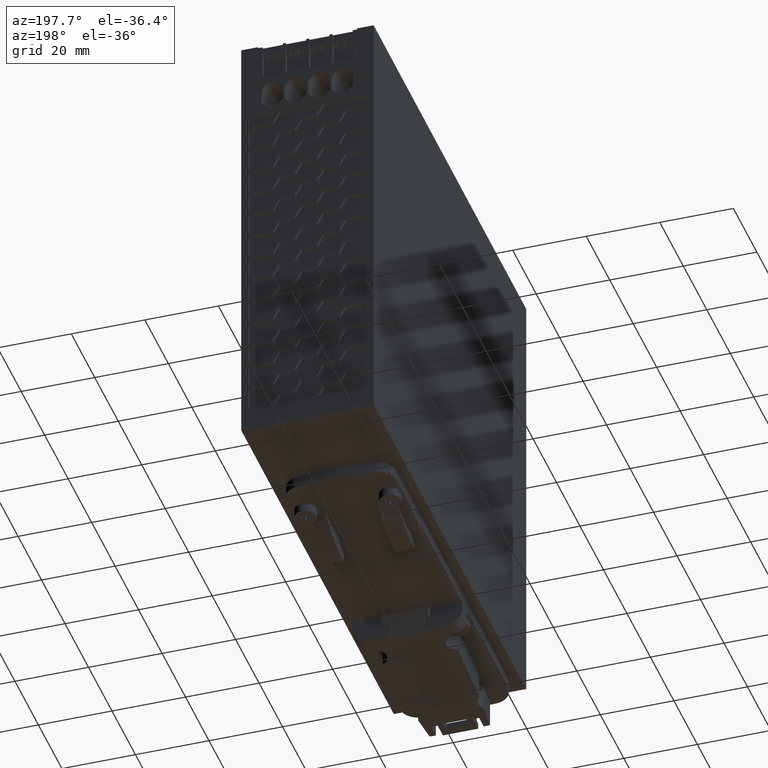
[diagram: clean part render]
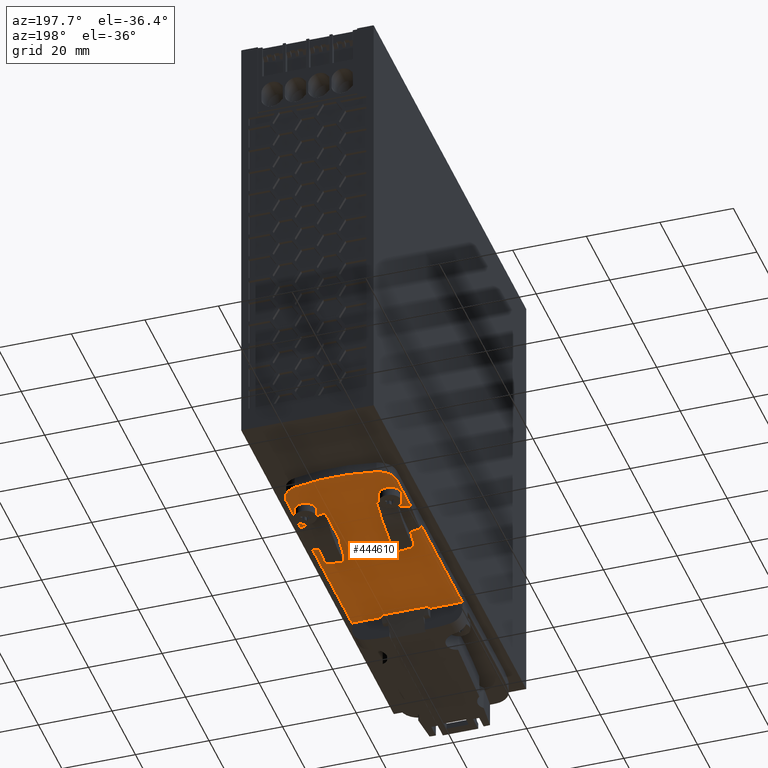
[diagram: same view with one face highlighted and labeled with its STEP entity id]
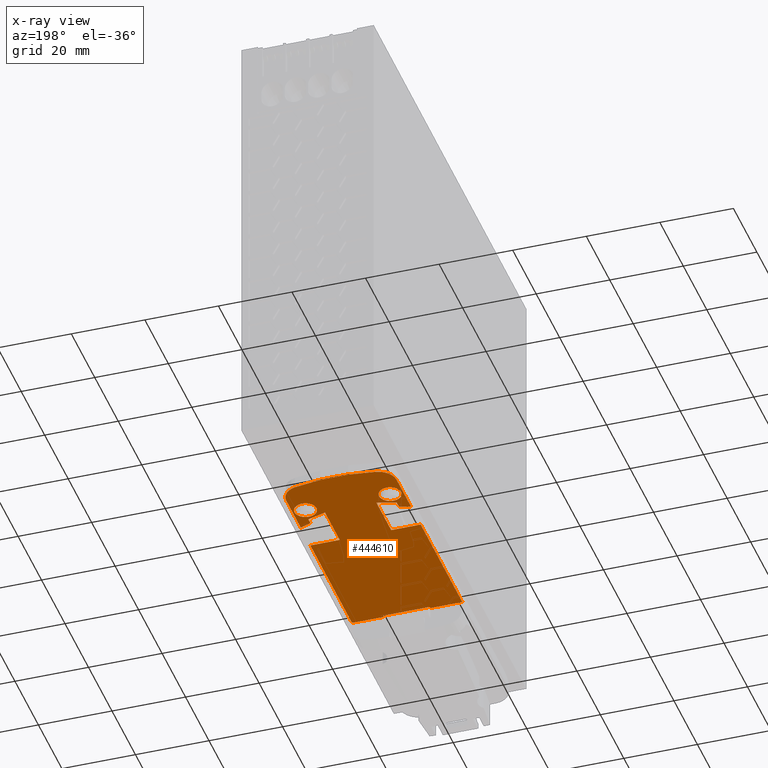
[diagram: x-ray of the same camera — body ghosted, the highlighted face saturated]
A machine part, auxiliary view. The second image highlights one B-rep face of the part: STEP entity #444610.
The next image is the same camera in x-ray: the body ghosted, the highlighted face saturated — about 0% of this face is hidden behind the body in this view.
In plain terms, the highlighted planar face has unit normal (0, 0, -1).
Its self-contained STEP definition (entity closure, byte-faithful):
#406170=CARTESIAN_POINT('',(33.0006696575565,88.711504177131,
6.59999999999972));
#406180=VERTEX_POINT('',#406170);
#406270=CARTESIAN_POINT('',(33.0007818670326,80.5489273646893,
6.59999999999972));
#406280=VERTEX_POINT('',#406270);
#406310=CARTESIAN_POINT('',(33.0001130694827,129.2,6.59999999999972));
#406320=DIRECTION('',(1.37468202358229E-5,-0.999999999905513,
3.26265223505973E-55));
#406330=VECTOR('',#406320,1.);
#406340=LINE('',#406310,#406330);
#406350=CARTESIAN_POINT('',(33.0012698791509,45.0489273680436,
6.59999999999972));
#406360=VERTEX_POINT('',#406350);
#406370=EDGE_CURVE('',#406280,#406360,#406340,.T.);
#406820=CARTESIAN_POINT('',(33.000499715995,101.073749299711,
6.59999999999972));
#406830=VERTEX_POINT('',#406820);
#406860=CARTESIAN_POINT('',(33.0001130694827,129.2,6.59999999999972));
#406870=DIRECTION('',(1.37468202358229E-5,-0.999999999905513,
3.26265223505973E-55));
#406880=VECTOR('',#406870,1.);
#406890=LINE('',#406860,#406880);
#406900=EDGE_CURVE('',#406830,#406180,#406890,.T.);
#407120=CARTESIAN_POINT('',(29.1115438119969,105.948676054611,
6.59999999999972));
#407130=VERTEX_POINT('',#407120);
#407160=CARTESIAN_POINT('',(28.0004997164675,101.073680565609,
6.59999999999972));
#407170=DIRECTION('',(9.95682444457783E-60,-3.26265223399926E-55,-1.));
#407180=DIRECTION('',(-1.,1.38913403349705E-19,-9.95682444457783E-60));
#407190=AXIS2_PLACEMENT_3D('',#407160,#407170,#407180);
#407200=CIRCLE('',#407190,4.99999999999995);
#407210=EDGE_CURVE('',#407130,#406830,#407200,.T.);
#407450=CARTESIAN_POINT('',(6.88932159187441,105.948370569717,
6.59999999999972));
#407460=VERTEX_POINT('',#407450);
#407490=CARTESIAN_POINT('',(18.0011028567024,57.1987211645928,
6.59999999999972));
#407500=DIRECTION('',(9.95682444457783E-60,-3.26265223399926E-55,-1.));
#407510=DIRECTION('',(-1.,1.38913403349705E-19,-9.95682444457783E-60));
#407520=AXIS2_PLACEMENT_3D('',#407490,#407500,#407510);
#407530=CIRCLE('',#407520,49.9999999999993);
#407540=EDGE_CURVE('',#407460,#407130,#407530,.T.);
#408220=CARTESIAN_POINT('',(0.00178708709996158,45.0484737300857,
6.59999999999972));
#408230=DIRECTION('',(0.999999999905513,1.37468202375279E-5,
5.47171506780131E-60));
#408240=VECTOR('',#408230,1.);
#408250=LINE('',#408220,#408240);
#408260=CARTESIAN_POINT('',(24.301269879973,45.0488077707076,
6.59999999999972));
#408270=VERTEX_POINT('',#408260);
#408280=EDGE_CURVE('',#408270,#406360,#408250,.T.);
#409920=CARTESIAN_POINT('',(24.3001130686608,129.2,6.59999999999972));
#409930=DIRECTION('',(1.37468202343577E-5,-0.999999999905512,
3.26265223505973E-55));
#409940=VECTOR('',#409930,1.);
#409950=LINE('',#409920,#409940);
#409960=CARTESIAN_POINT('',(24.3012630065629,45.5488077706603,
6.59999999999972));
#409970=VERTEX_POINT('',#409960);
#409980=EDGE_CURVE('',#409970,#408270,#409950,.T.);
#410400=CARTESIAN_POINT('',(0.00178708709996158,45.548473730133,
6.59999999999972));
#410410=DIRECTION('',(0.999999999905512,1.37468202365522E-5,
5.47171506811966E-60));
#410420=VECTOR('',#410410,1.);
#410430=LINE('',#410400,#410420);
#410440=CARTESIAN_POINT('',(11.7012630077534,45.5486345607253,
6.59999999999972));
#410450=VERTEX_POINT('',#410440);
#410460=EDGE_CURVE('',#410450,#409970,#410430,.T.);
#411010=CARTESIAN_POINT('',(11.7001130674701,129.2,6.59999999999972));
#411020=DIRECTION('',(-1.37468202363879E-5,0.999999999905512,
-3.26265223505973E-55));
#411030=VECTOR('',#411020,1.);
#411040=LINE('',#411010,#411030);
#411050=CARTESIAN_POINT('',(11.7012698811635,45.0486345607726,
6.59999999999972));
#411060=VERTEX_POINT('',#411050);
#411070=EDGE_CURVE('',#411060,#410450,#411040,.T.);
#411450=CARTESIAN_POINT('',(0.00178708709996158,45.0484737300857,
6.59999999999972));
#411460=DIRECTION('',(0.999999999905513,1.37468202375279E-5,
5.47171506780131E-60));
#411470=VECTOR('',#411460,1.);
#411480=LINE('',#411450,#411470);
#411490=CARTESIAN_POINT('',(3.00126988198557,45.0485149634365,
6.59999999999972));
#411500=VERTEX_POINT('',#411490);
#411510=EDGE_CURVE('',#411500,#411060,#411480,.T.);
#412400=CARTESIAN_POINT('',(3.00011306664807,129.2,6.59999999999972));
#412410=DIRECTION('',(1.37468202359206E-5,-0.999999999905512,
3.26265223505973E-55));
#412420=VECTOR('',#412410,1.);
#412430=LINE('',#412400,#412420);
#412440=CARTESIAN_POINT('',(3.00078186986719,80.5485149600822,
6.59999999999972));
#412450=VERTEX_POINT('',#412440);
#412460=EDGE_CURVE('',#412450,#411500,#412430,.T.);
#412830=CARTESIAN_POINT('',(3.00066966039108,88.7110917725239,
6.59999999999974));
#412840=VERTEX_POINT('',#412830);
#412870=CARTESIAN_POINT('',(3.00011306664807,129.2,6.59999999999972));
#412880=DIRECTION('',(1.37468202359206E-5,-0.999999999905512,
3.26265223505973E-55));
#412890=VECTOR('',#412880,1.);
#412900=LINE('',#412870,#412890);
#412910=CARTESIAN_POINT('',(3.00049971882965,101.073336895104,
6.59999999999972));
#412920=VERTEX_POINT('',#412910);
#412930=EDGE_CURVE('',#412920,#412840,#412900,.T.);
#413160=CARTESIAN_POINT('',(8.00049971835728,101.073405629205,
6.59999999999972));
#413170=DIRECTION('',(9.95682444457783E-60,-3.26265223399926E-55,-1.));
#413180=DIRECTION('',(-1.,1.38913403349705E-19,-9.95682444457783E-60));
#413190=AXIS2_PLACEMENT_3D('',#413160,#413170,#413180);
#413200=CIRCLE('',#413190,5.00000000000008);
#413210=EDGE_CURVE('',#412920,#407460,#413200,.T.);
#413410=CARTESIAN_POINT('',(0.00178708709996158,80.5484737334401,
6.59999999999972));
#413420=DIRECTION('',(-0.999999999905513,-1.37468202355511E-5,
-5.47171506844629E-60));
#413430=VECTOR('',#413420,1.);
#413440=LINE('',#413410,#413430);
#413450=CARTESIAN_POINT('',(11.0007818691113,80.5486249346441,
6.59999999999972));
#413460=VERTEX_POINT('',#413450);
#413470=EDGE_CURVE('',#413460,#412450,#413440,.T.);
#414300=CARTESIAN_POINT('',(11.000113067404,129.2,6.59999999999972));
#414310=DIRECTION('',(-1.3746820235798E-5,0.999999999905513,
-3.26265223505973E-55));
#414320=VECTOR('',#414310,1.);
#414330=LINE('',#414300,#414320);
#414340=CARTESIAN_POINT('',(11.00060950093,93.0873923219355,
6.59999999999972));
#414350=VERTEX_POINT('',#414340);
#414360=EDGE_CURVE('',#413460,#414350,#414330,.T.);
#414920=CARTESIAN_POINT('',(6.00011306693153,129.2,6.59999999999972));
#414930=DIRECTION('',(-1.37468202359883E-5,0.999999999905512,
-3.26265223505973E-55));
#414940=VECTOR('',#414930,1.);
#414950=LINE('',#414920,#414940);
#414960=CARTESIAN_POINT('',(6.00065459239778,89.8072199316904,
6.59999999999972));
#414970=VERTEX_POINT('',#414960);
#414980=CARTESIAN_POINT('',(6.00063035828749,91.5701083575295,
6.59999999999972));
#414990=VERTEX_POINT('',#414980);
#415000=EDGE_CURVE('',#414970,#414990,#414950,.T.);
#417530=CARTESIAN_POINT('',(6.00065459239785,89.8072199267511,
6.59999999999972));
#417540=CARTESIAN_POINT('',(5.98476421142438,89.8022766316507,
6.59999999999972));
#417550=CARTESIAN_POINT('',(5.95298958652914,89.7923702841277,
6.59999999999972));
#417560=CARTESIAN_POINT('',(5.88946914156527,89.7724650776187,
6.59999999999972));
#417570=CARTESIAN_POINT('',(5.8101224164082,89.7474118773588,
6.59999999999972));
#417580=CARTESIAN_POINT('',(5.7387753413328,89.7246590431978,
6.59999999999972));
#417590=CARTESIAN_POINT('',(5.69123806289457,89.709404959447,
6.59999999999972));
#417600=CARTESIAN_POINT('',(5.65955442620393,89.6992109631759,
6.59999999999972));
#417610=CARTESIAN_POINT('',(5.57245576005785,89.6710776141812,
6.59999999999972));
#417620=CARTESIAN_POINT('',(5.43010635000332,89.6244959087909,
6.59999999999972));
#417630=CARTESIAN_POINT('',(5.05127607754603,89.4979564213531,
6.59999999999972));
#417640=CARTESIAN_POINT('',(4.48590698230466,89.2994310857445,
6.59999999999972));
#417650=CARTESIAN_POINT('',(3.86339380902277,89.0633757548544,
6.59999999999972));
#417660=CARTESIAN_POINT('',(3.4308793824773,88.8899380064901,
6.59999999999972));
#417670=CARTESIAN_POINT('',(3.23088705584881,88.8075050167989,
6.59999999999972));
#417680=CARTESIAN_POINT('',(3.14641726128744,88.7722888845206,
6.59999999999972));
#417690=CARTESIAN_POINT('',(3.11955406311227,88.7610513605265,
6.59999999999972));
#417700=CARTESIAN_POINT('',(3.10420751573085,88.7546207225749,
6.59999999999972));
#417710=CARTESIAN_POINT('',(3.08119201267528,88.7449644878059,
6.59999999999974));
#417720=CARTESIAN_POINT('',(3.05434811198608,88.7336809751512,
6.59999999999972));
#417730=CARTESIAN_POINT('',(3.02750737338545,88.7223899577265,
6.59999999999972));
#417740=CARTESIAN_POINT('',(3.01408794729577,88.7167422076046,
6.59999999999972));
#417750=CARTESIAN_POINT('',(3.00641989085222,88.7135144791262,
6.59999999999972));
#417760=CARTESIAN_POINT('',(3.00258618325065,88.7118998529655,
6.59999999999972));
#417770=CARTESIAN_POINT('',(3.00066965469374,88.7110917684843,
6.59999999999972));
#417780=B_SPLINE_CURVE_WITH_KNOTS('',3,(#417530,#417540,#417550,#417560,
#417570,#417580,#417590,#417600,#417610,#417620,#417630,#417640,#417650,
#417660,#417670,#417680,#417690,#417700,#417710,#417720,#417730,#417740,
#417750,#417760,#417770),.UNSPECIFIED.,.F.,.F.,(4,1,1,1,1,1,1,1,1,1,1,1,
1,1,1,1,1,1,1,1,1,1,4),(0.,0.015624733671173,0.031249469653176,
0.062499044700485,0.09374860621571,0.101561002358867,0.109373399372656,
0.124998194456258,0.187498141469384,0.249998122328627,0.499998939434173,
0.750035154333188,0.875018056520831,0.937509067185836,0.953131804020811,
0.960943172601073,0.964848856958487,0.968754541260401,0.984377271003576,
0.992188635879079,0.9960943180232,0.998047159057379,1.),.UNSPECIFIED.);
#417790=EDGE_CURVE('',#414970,#412840,#417780,.T.);
#418680=CARTESIAN_POINT('',(11.0006095006035,93.0873923209287,
6.59999999999972));
#418690=CARTESIAN_POINT('',(11.000196751031,93.0872900597221,
6.59999999999972));
#418700=CARTESIAN_POINT('',(10.999371709707,93.0870836924227,
6.59999999999972));
#418710=CARTESIAN_POINT('',(10.9977214920801,93.0866715037043,
6.59999999999972));
#418720=CARTESIAN_POINT('',(10.9948336822771,93.0859498746094,
6.59999999999972));
#418730=CARTESIAN_POINT('',(10.9890580069811,93.0845068277512,
6.59999999999972));
#418740=CARTESIAN_POINT('',(10.9775068193365,93.0816200505471,
6.59999999999972));
#418750=CARTESIAN_POINT('',(10.9544041242785,93.0758477175968,
6.59999999999972));
#418760=CARTESIAN_POINT('',(10.9280008914586,93.0692502390184,
6.59999999999972));
#418770=CARTESIAN_POINT('',(10.9015974678113,93.062652391701,
6.59999999999972));
#418780=CARTESIAN_POINT('',(10.8751932929652,93.0560553280313,
6.59999999999972));
#418790=CARTESIAN_POINT('',(10.842191596814,93.047791663045,
6.59999999999972));
#418800=CARTESIAN_POINT('',(10.8025975274606,93.03784092553,
6.59999999999972));
#418810=CARTESIAN_POINT('',(10.749815116448,93.0245304632089,
6.59999999999972));
#418820=CARTESIAN_POINT('',(10.6046973319026,92.9877453892261,
6.59999999999972));
#418830=CARTESIAN_POINT('',(10.4201817371273,92.9401681187926,
6.59999999999972));
#418840=CARTESIAN_POINT('',(10.2095657471826,92.8847604317284,
6.59999999999972));
#418850=CARTESIAN_POINT('',(9.99911272655243,92.8286593111742,
6.59999999999972));
#418860=CARTESIAN_POINT('',(9.63126237292319,92.7286679798648,
6.59999999999972));
#418870=CARTESIAN_POINT('',(9.10714465667324,92.5806735776707,
6.59999999999972));
#418880=CARTESIAN_POINT('',(8.2716973113458,92.3329770040235,
6.59999999999972));
#418890=CARTESIAN_POINT('',(7.44118225464545,92.0690368792015,
6.59999999999972));
#418900=CARTESIAN_POINT('',(6.71921317224135,91.8241206403732,
6.59999999999972));
#418910=CARTESIAN_POINT('',(6.38518125973321,91.7072077378555,
6.59999999999972));
#418920=CARTESIAN_POINT('',(6.24407775960413,91.6571872525261,
6.59999999999972));
#418930=CARTESIAN_POINT('',(6.19279342057924,91.6389372067753,
6.59999999999972));
#418940=CARTESIAN_POINT('',(6.15434148257273,91.6252202740369,
6.59999999999972));
#418950=CARTESIAN_POINT('',(6.11590216651293,91.6114703403763,
6.59999999999972));
#418960=CARTESIAN_POINT('',(6.08387912038794,91.5999876654989,
6.59999999999972));
#418970=CARTESIAN_POINT('',(6.05826406302292,91.5907930549171,
6.59999999999972));
#418980=CARTESIAN_POINT('',(6.03905261984919,91.583898704898,
6.59999999999972));
#418990=CARTESIAN_POINT('',(6.02304338695602,91.5781525815445,
6.59999999999972));
#419000=CARTESIAN_POINT('',(6.01183668939018,91.5741309623451,
6.59999999999972));
#419010=CARTESIAN_POINT('',(6.00623345456848,91.5721198450717,
6.59999999999972));
#419020=CARTESIAN_POINT('',(6.00343178541443,91.5711144020357,
6.59999999999972));
#419030=CARTESIAN_POINT('',(6.00183085987747,91.5705397281952,
6.59999999999972));
#419040=CARTESIAN_POINT('',(6.00103026975624,91.5702527045728,
6.59999999999972));
#419050=CARTESIAN_POINT('',(6.0006302817501,91.5701083331256,
6.59999999999972));
#419060=B_SPLINE_CURVE_WITH_KNOTS('',3,(#418680,#418690,#418700,#418710,
#418720,#418730,#418740,#418750,#418760,#418770,#418780,#418790,#418800,
#418810,#418820,#418830,#418840,#418850,#418860,#418870,#418880,#418890,
#418900,#418910,#418920,#418930,#418940,#418950,#418960,#418970,#418980,
#418990,#419000,#419010,#419020,#419030,#419040,#419050),.UNSPECIFIED.,
.F.,.F.,(4,1,1,1,1,1,1,1,1,1,1,1,1,1,1,1,1,1,1,1,1,1,1,1,1,1,1,1,1,1,1,1
,1,1,1,4),(0.,0.000244037983802,0.000488076222574,0.00097615299268,
0.001952307117527,0.003904616536751,0.007809237674098,0.015618484804456,
0.019523263546943,0.023428042262412,0.03123759862989,0.039047606437888,
0.046857614960146,0.062477637924135,0.124964387955741,0.15621335078156,
0.187462278406562,0.249960417070914,0.374981011362291,0.500003505122966,
0.750040847926857,0.875035739128354,0.93752237031702,0.95314238293342,
0.960952386786285,0.96876239065677,0.976571943561825,0.984381496520365,
0.988286120545852,0.992190744594104,0.996095366606573,0.998047676530583,
0.999023831036303,0.999511908054342,0.999755952598832,1.),.UNSPECIFIED.)
;
#419070=EDGE_CURVE('',#414350,#414990,#419060,.T.);
#443120=CARTESIAN_POINT('',(33.7512929131708,43.4947560284076,
6.59999999999972));
#443130=DIRECTION('',(9.95682444457778E-60,-3.26265223399926E-55,-1.));
#443140=DIRECTION('',(-1.,1.38913403349705E-19,-9.95682444457783E-60));
#443150=AXIS2_PLACEMENT_3D('',#443120,#443130,#443140);
#443160=PLANE('',#443150);
#443170=ORIENTED_EDGE('',*,*,#406370,.T.);
#443180=CARTESIAN_POINT('',(0.00178708709996158,80.5484737334401,
6.59999999999972));
#443190=DIRECTION('',(0.999999999905512,1.37468202355531E-5,
5.47171506844563E-60));
#443200=VECTOR('',#443190,1.);
#443210=LINE('',#443180,#443200);
#443220=CARTESIAN_POINT('',(25.0007818677885,80.5488173901274,
6.59999999999972));
#443230=VERTEX_POINT('',#443220);
#443240=EDGE_CURVE('',#443230,#406280,#443210,.T.);
#443250=ORIENTED_EDGE('',*,*,#443240,.T.);
#443260=CARTESIAN_POINT('',(25.0001130687268,129.2,6.59999999999972));
#443270=DIRECTION('',(-1.37468202356956E-5,0.999999999905512,
-3.26265223505973E-55));
#443280=VECTOR('',#443270,1.);
#443290=LINE('',#443260,#443280);
#443300=CARTESIAN_POINT('',(25.0006094996072,93.0875847774152,
6.59999999999759));
#443310=VERTEX_POINT('',#443300);
#443320=EDGE_CURVE('',#443230,#443310,#443290,.T.);
#443330=ORIENTED_EDGE('',*,*,#443320,.F.);
#443340=CARTESIAN_POINT('',(25.0006094996072,93.0875847774143,
6.59999999999972));
#443350=CARTESIAN_POINT('',(25.0010222519934,93.0874825275536,
6.59999999999972));
#443360=CARTESIAN_POINT('',(25.0018472989053,93.0872761825704,
6.59999999999972));
#443370=CARTESIAN_POINT('',(25.0034975278931,93.0868640392918,
6.59999999999972));
#443380=CARTESIAN_POINT('',(25.0063853574319,93.0861424890967,
6.59999999999972));
#443390=CARTESIAN_POINT('',(25.0121610724934,93.08469960124,
6.59999999999974));
#443400=CARTESIAN_POINT('',(25.0237123395021,93.0818131412894,
6.59999999999972));
#443410=CARTESIAN_POINT('',(25.0468151934023,93.0760414434465,
6.59999999999974));
#443420=CARTESIAN_POINT('',(25.07321860804,93.0694446920108,
6.59999999999972));
#443430=CARTESIAN_POINT('',(25.0996222123559,93.0628475674284,
6.59999999999972));
#443440=CARTESIAN_POINT('',(25.1260265599203,93.0562511951009,
6.59999999999972));
#443450=CARTESIAN_POINT('',(25.1590284895179,93.0479884616831,
6.59999999999972));
#443460=CARTESIAN_POINT('',(25.1986228584205,93.0380389158941,
6.59999999999972));
#443470=CARTESIAN_POINT('',(25.2514055995795,93.024729762713,
6.59999999999972));
#443480=CARTESIAN_POINT('',(25.3965244277217,92.9879488075769,
6.59999999999972));
#443490=CARTESIAN_POINT('',(25.5810413072573,92.9403765179874,
6.59999999999972));
#443500=CARTESIAN_POINT('',(25.7916588247903,92.8849746386807,
6.59999999999972));
#443510=CARTESIAN_POINT('',(26.0021133866972,92.8288793000628,
6.59999999999972));
#443520=CARTESIAN_POINT('',(26.369966489902,92.7288980848095,
6.59999999999972));
#443530=CARTESIAN_POINT('',(26.8940882748331,92.5809180923427,
6.59999999999972));
#443540=CARTESIAN_POINT('',(27.7295424295657,92.3332444871227,
6.59999999999972));
#443550=CARTESIAN_POINT('',(28.5600647428124,92.0693271967608,
6.59999999999972));
#443560=CARTESIAN_POINT('',(29.2820405585789,91.8244308075066,
6.59999999999974));
#443570=CARTESIAN_POINT('',(29.6160756853386,91.7075270887904,
6.59999999999972));
#443580=CARTESIAN_POINT('',(29.7571805606664,91.6575104829261,
6.59999999999972));
#443590=CARTESIAN_POINT('',(29.8084654014353,91.6392618471759,
6.59999999999972));
#443600=CARTESIAN_POINT('',(29.8469177165573,91.6255459716244,
6.59999999999972));
#443610=CARTESIAN_POINT('',(29.8853574106404,91.6117970948052,
6.59999999999972));
#443620=CARTESIAN_POINT('',(29.9173807724559,91.6003153003623,
6.59999999999972));
#443630=CARTESIAN_POINT('',(29.9429960826061,91.591121394035,
6.59999999999972));
#443640=CARTESIAN_POINT('',(29.9622077153244,91.5842275722104,
6.59999999999972));
#443650=CARTESIAN_POINT('',(29.9782171061944,91.5784818890114,
6.59999999999972));
#443660=CARTESIAN_POINT('',(29.9894239143255,91.5744605779258,
6.59999999999972));
#443670=CARTESIAN_POINT('',(29.9950272044384,91.5724496147065,
6.59999999999972));
#443680=CARTESIAN_POINT('',(29.9978289012348,91.5714442486989,
6.59999999999972));
#443690=CARTESIAN_POINT('',(29.9994298425712,91.5708696188739,
6.59999999999972));
#443700=CARTESIAN_POINT('',(30.0002304405834,91.5705826172625,
6.59999999999972));
#443710=CARTESIAN_POINT('',(30.0006304325588,91.570438256813,
6.59999999999972));
#443720=B_SPLINE_CURVE_WITH_KNOTS('',3,(#443340,#443350,#443360,#443370,
#443380,#443390,#443400,#443410,#443420,#443430,#443440,#443450,#443460,
#443470,#443480,#443490,#443500,#443510,#443520,#443530,#443540,#443550,
#443560,#443570,#443580,#443590,#443600,#443610,#443620,#443630,#443640,
#443650,#443660,#443670,#443680,#443690,#443700,#443710),.UNSPECIFIED.,
.F.,.F.,(4,1,1,1,1,1,1,1,1,1,1,1,1,1,1,1,1,1,1,1,1,1,1,1,1,1,1,1,1,1,1,1
,1,1,1,4),(0.,0.000244037985387,0.000488076225778,0.000976152999124,
0.001952307130476,0.003904616562713,0.007809237726096,0.015618484908559,
0.019523263645805,0.023428042356148,0.031237598729755,0.039047606663913,
0.046857615066748,0.062477638027739,0.124964388049168,0.156213350869903,
0.187462278490375,0.249960417145302,0.374981011408979,0.500003505166397,
0.750040847944962,0.875035739136489,0.937522370320862,0.953142382936274,
0.960952386788645,0.968762390658637,0.976571943563216,0.98438149652128,
0.988286120546543,0.992190744594559,0.996095366606797,0.998047676530696,
0.999023831036355,0.999511908054371,0.999755952598848,1.),.UNSPECIFIED.)
;
#443730=CARTESIAN_POINT('',(30.0006303560198,91.5704382812119,
6.59999999999768));
#443740=VERTEX_POINT('',#443730);
#443750=EDGE_CURVE('',#443310,#443740,#443720,.T.);
#443760=ORIENTED_EDGE('',*,*,#443750,.F.);
#443770=CARTESIAN_POINT('',(30.0001130691992,129.2,6.59999999999972));
#443780=DIRECTION('',(-1.37468202359331E-5,0.999999999905513,
-3.26265223505973E-55));
#443790=VECTOR('',#443780,1.);
#443800=LINE('',#443770,#443790);
#443810=CARTESIAN_POINT('',(30.0006545901301,89.8075498553755,
6.59999999999972));
#443820=VERTEX_POINT('',#443810);
#443830=EDGE_CURVE('',#443820,#443740,#443800,.T.);
#443840=ORIENTED_EDGE('',*,*,#443830,.T.);
#443850=CARTESIAN_POINT('',(30.0006545901301,89.8075498553755,
6.59999999999972));
#443860=CARTESIAN_POINT('',(30.016545107802,89.8026069970392,
6.59999999999972));
#443870=CARTESIAN_POINT('',(30.0483200054555,89.7927015190821,
6.59999999999972));
#443880=CARTESIAN_POINT('',(30.1118410008278,89.7727980584553,
6.59999999999972));
#443890=CARTESIAN_POINT('',(30.1911884186694,89.7477470388764,
6.59999999999972));
#443900=CARTESIAN_POINT('',(30.2625361222432,89.7249961638063,
6.59999999999972));
#443910=CARTESIAN_POINT('',(30.3100738221214,89.7097433856355,
6.59999999999972));
#443920=CARTESIAN_POINT('',(30.3417577405119,89.699550259728,
6.59999999999972));
#443930=CARTESIAN_POINT('',(30.4288571838585,89.6714193033112,
6.59999999999974));
#443940=CARTESIAN_POINT('',(30.5712078807246,89.6248415087899,
6.59999999999972));
#443950=CARTESIAN_POINT('',(30.9500416565816,89.4983124339032,
6.59999999999974));
#443960=CARTESIAN_POINT('',(31.5154160833374,89.2998025500072,
6.59999999999972));
#443970=CARTESIAN_POINT('',(32.1379358675141,89.063764775543,
6.59999999999972));
#443980=CARTESIAN_POINT('',(32.570454896679,88.890338590126,
6.59999999999972));
#443990=CARTESIAN_POINT('',(32.77044957678,88.8079110998804,
6.59999999999972));
#444000=CARTESIAN_POINT('',(32.854920381288,88.7726972769628,
6.59999999999972));
#444010=CARTESIAN_POINT('',(32.8817839004219,88.7614604865354,
6.59999999999972));
#444020=CARTESIAN_POINT('',(32.8971306312597,88.7550302670154,
6.59999999999972));
#444030=CARTESIAN_POINT('',(32.9201464075162,88.7453746542797,
6.59999999999972));
#444040=CARTESIAN_POINT('',(32.9469906343602,88.7340918835978,
6.59999999999972));
#444050=CARTESIAN_POINT('',(32.9738316946944,88.7228015970152,
6.59999999999972));
#444060=CARTESIAN_POINT('',(32.9872512818257,88.7171542125611,
6.59999999999972));
#444070=CARTESIAN_POINT('',(32.9949194289703,88.7139266898567,
6.59999999999972));
#444080=CARTESIAN_POINT('',(32.998753181176,88.7123121647552,
6.59999999999972));
#444090=CARTESIAN_POINT('',(33.0006697328075,88.7115041325775,
6.59999999999972));
#444100=B_SPLINE_CURVE_WITH_KNOTS('',3,(#443850,#443860,#443870,#443880,
#443890,#443900,#443910,#443920,#443930,#443940,#443950,#443960,#443970,
#443980,#443990,#444000,#444010,#444020,#444030,#444040,#444050,#444060,
#444070,#444080,#444090),.UNSPECIFIED.,.F.,.F.,(4,1,1,1,1,1,1,1,1,1,1,1,
1,1,1,1,1,1,1,1,1,1,4),(0.,0.015624734007336,0.031249470325589,
0.06249904604598,0.093748608238673,0.101561004551492,0.109373401735089,
0.124998197158643,0.187498145349089,0.249998127373343,0.499998954614795,
0.750035064020798,0.875018001263974,0.937509040707152,0.953131784068478,
0.960943155962061,0.964848841976381,0.968754527935468,0.984377264341221,
0.992188632547832,0.996094316357438,0.998047158224346,1.),.UNSPECIFIED.)
;
#444110=EDGE_CURVE('',#443820,#406180,#444100,.T.);
#444120=ORIENTED_EDGE('',*,*,#444110,.F.);
#444130=ORIENTED_EDGE('',*,*,#406900,.T.);
#444140=ORIENTED_EDGE('',*,*,#407210,.T.);
#444150=ORIENTED_EDGE('',*,*,#407540,.T.);
#444160=ORIENTED_EDGE('',*,*,#413210,.T.);
#444170=ORIENTED_EDGE('',*,*,#412930,.F.);
#444180=ORIENTED_EDGE('',*,*,#417790,.T.);
#444190=ORIENTED_EDGE('',*,*,#415000,.F.);
#444200=ORIENTED_EDGE('',*,*,#419070,.T.);
#444210=ORIENTED_EDGE('',*,*,#414360,.T.);
#444220=ORIENTED_EDGE('',*,*,#413470,.F.);
#444230=ORIENTED_EDGE('',*,*,#412460,.F.);
#444240=ORIENTED_EDGE('',*,*,#411510,.F.);
#444250=ORIENTED_EDGE('',*,*,#411070,.F.);
#444260=ORIENTED_EDGE('',*,*,#410460,.F.);
#444270=ORIENTED_EDGE('',*,*,#409980,.F.);
#444280=ORIENTED_EDGE('',*,*,#408280,.F.);
#444290=EDGE_LOOP('',(#444280,#444270,#444260,#444250,#444240,#444230,
#444220,#444210,#444200,#444190,#444180,#444170,#444160,#444150,#444140,
#444130,#444120,#443840,#443760,#443330,#443250,#443170));
#444300=FACE_OUTER_BOUND('',#444290,.T.);
#444310=CARTESIAN_POINT('',(29.5005749452048,95.6012444441962,
6.59999999999972));
#444320=DIRECTION('',(9.95682444457783E-60,-3.26265223399926E-55,-1.));
#444330=DIRECTION('',(-1.,1.38913403349705E-19,-9.95682444457783E-60));
#444340=AXIS2_PLACEMENT_3D('',#444310,#444320,#444330);
#444350=CIRCLE('',#444340,3.);
#444360=CARTESIAN_POINT('',(32.5005749452048,95.6012444441962,
6.59999999999972));
#444370=VERTEX_POINT('',#444360);
#444380=CARTESIAN_POINT('',(26.5005749452048,95.6012444441962,
6.59999999999972));
#444390=VERTEX_POINT('',#444380);
#444400=EDGE_CURVE('',#444370,#444390,#444350,.T.);
#444410=ORIENTED_EDGE('',*,*,#444400,.F.);
#444420=EDGE_CURVE('',#444390,#444370,#444350,.T.);
#444430=ORIENTED_EDGE('',*,*,#444420,.F.);
#444440=EDGE_LOOP('',(#444430,#444410));
#444450=FACE_BOUND('',#444440,.T.);
#444460=CARTESIAN_POINT('',(6.50057494737803,95.6009282673308,
6.59999999999972));
#444470=DIRECTION('',(9.95682444457783E-60,-3.26265223399926E-55,-1.));
#444480=DIRECTION('',(-1.,1.38913403349705E-19,-9.95682444457783E-60));
#444490=AXIS2_PLACEMENT_3D('',#444460,#444470,#444480);
#444500=CIRCLE('',#444490,3.00000000000002);
#444510=CARTESIAN_POINT('',(3.50057494737801,95.6009282673308,
6.59999999999972));
#444520=VERTEX_POINT('',#444510);
#444530=CARTESIAN_POINT('',(9.50057494737806,95.6009282673308,
6.59999999999972));
#444540=VERTEX_POINT('',#444530);
#444550=EDGE_CURVE('',#444520,#444540,#444500,.T.);
#444560=ORIENTED_EDGE('',*,*,#444550,.F.);
#444570=EDGE_CURVE('',#444540,#444520,#444500,.T.);
#444580=ORIENTED_EDGE('',*,*,#444570,.F.);
#444590=EDGE_LOOP('',(#444580,#444560));
#444600=FACE_BOUND('',#444590,.T.);
#444610=ADVANCED_FACE('',(#444300,#444450,#444600),#443160,.T.);